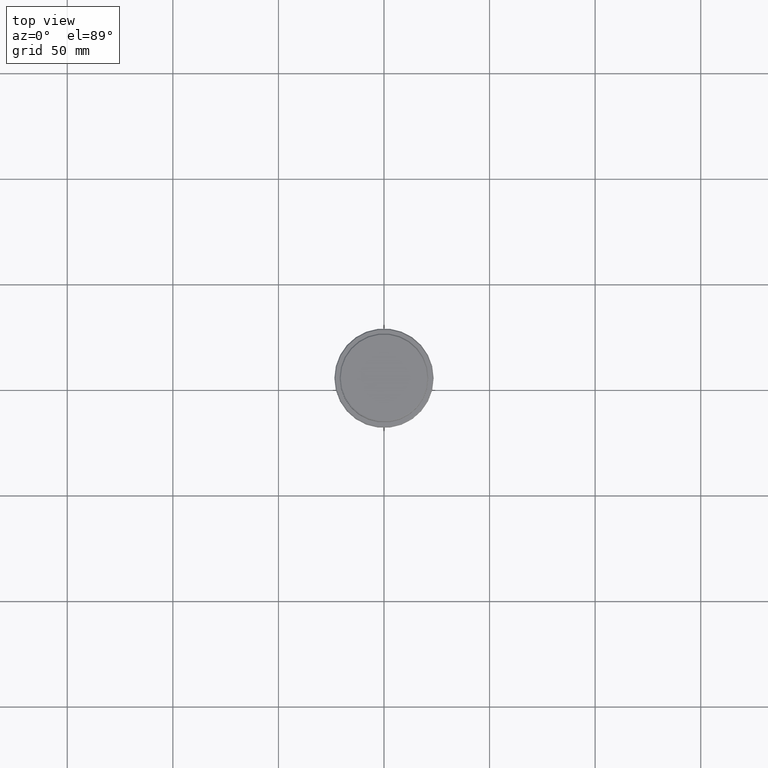
[diagram: clean part render]
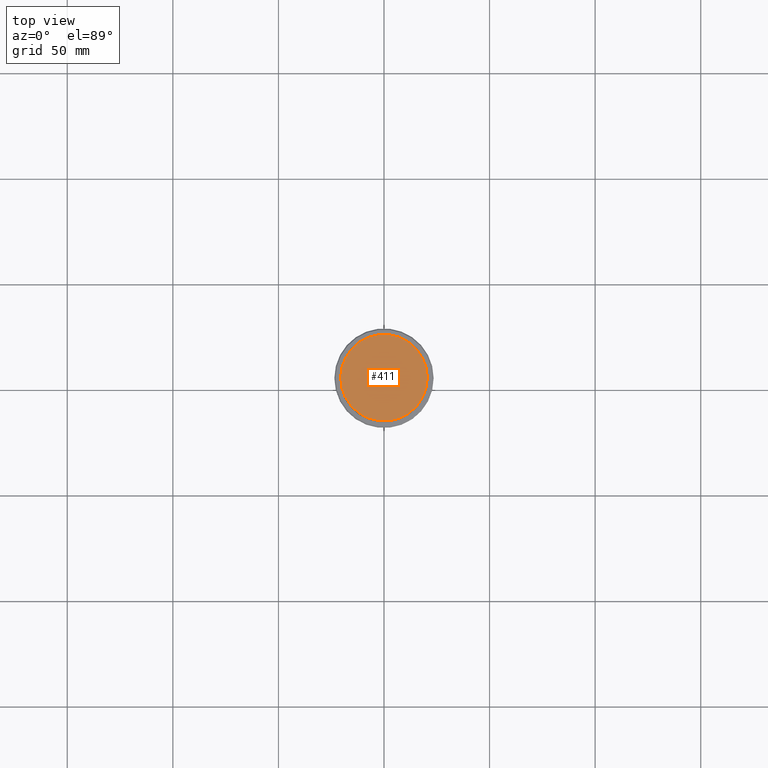
[diagram: same view with one face highlighted and labeled with its STEP entity id]
A machine part, top view. The second image highlights one B-rep face of the part: STEP entity #411.
In plain terms, the highlighted planar face has unit normal (0, -0, 1).
Its self-contained STEP definition (entity closure, byte-faithful):
#12 = CARTESIAN_POINT ( 'NONE',  ( 0.000000000000000000, 0.000000000000000000, 0.000000000000000000 ) ) ;
#65 = ORIENTED_EDGE ( 'NONE', *, *, #1085, .T. ) ;
#102 = EDGE_CURVE ( 'NONE', #873, #562, #192, .T. ) ;
#192 = CIRCLE ( 'NONE', #519, 20.49999999999996447 ) ;
#224 = CARTESIAN_POINT ( 'NONE',  ( -20.49999999999996447, 0.000000000000000000, 0.000000000000000000 ) ) ;
#310 = CIRCLE ( 'NONE', #1232, 20.49999999999996447 ) ;
#321 = DIRECTION ( 'NONE',  ( 0.000000000000000000, -0.000000000000000000, 1.000000000000000000 ) ) ;
#407 = EDGE_LOOP ( 'NONE', ( #794, #65 ) ) ;
#411 = ADVANCED_FACE ( 'NONE', ( #864 ), #1298, .T. ) ;
#502 = DIRECTION ( 'NONE',  ( 1.000000000000000000, 0.000000000000000000, 0.000000000000000000 ) ) ;
#519 = AXIS2_PLACEMENT_3D ( 'NONE', #929, #1014, #583 ) ;
#562 = VERTEX_POINT ( 'NONE', #791 ) ;
#564 = DIRECTION ( 'NONE',  ( 1.000000000000000000, 0.000000000000000000, 0.000000000000000000 ) ) ;
#583 = DIRECTION ( 'NONE',  ( 1.000000000000000000, 0.000000000000000000, 0.000000000000000000 ) ) ;
#791 = CARTESIAN_POINT ( 'NONE',  ( 20.49999999999996447, 2.541142108230755507E-15, 0.000000000000000000 ) ) ;
#794 = ORIENTED_EDGE ( 'NONE', *, *, #102, .T. ) ;
#864 = FACE_OUTER_BOUND ( 'NONE', #407, .T. ) ;
#873 = VERTEX_POINT ( 'NONE', #224 ) ;
#880 = AXIS2_PLACEMENT_3D ( 'NONE', #12, #321, #564 ) ;
#929 = CARTESIAN_POINT ( 'NONE',  ( 0.000000000000000000, 0.000000000000000000, 0.000000000000000000 ) ) ;
#943 = DIRECTION ( 'NONE',  ( -0.000000000000000000, -0.000000000000000000, 1.000000000000000000 ) ) ;
#1014 = DIRECTION ( 'NONE',  ( -0.000000000000000000, -0.000000000000000000, 1.000000000000000000 ) ) ;
#1066 = CARTESIAN_POINT ( 'NONE',  ( 0.000000000000000000, 0.000000000000000000, 0.000000000000000000 ) ) ;
#1085 = EDGE_CURVE ( 'NONE', #562, #873, #310, .T. ) ;
#1232 = AXIS2_PLACEMENT_3D ( 'NONE', #1066, #943, #502 ) ;
#1298 = PLANE ( 'NONE',  #880 ) ;